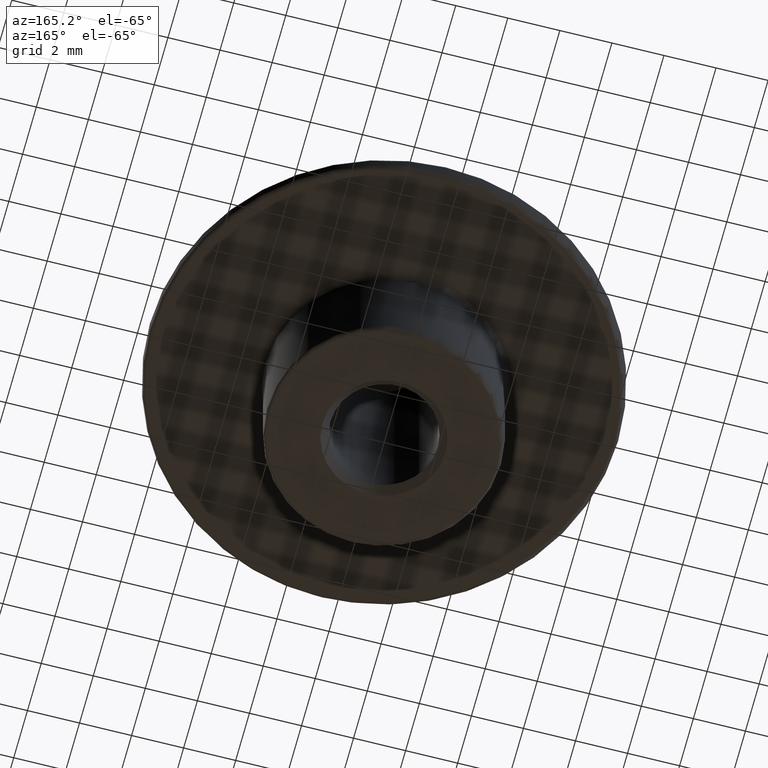
[diagram: clean part render]
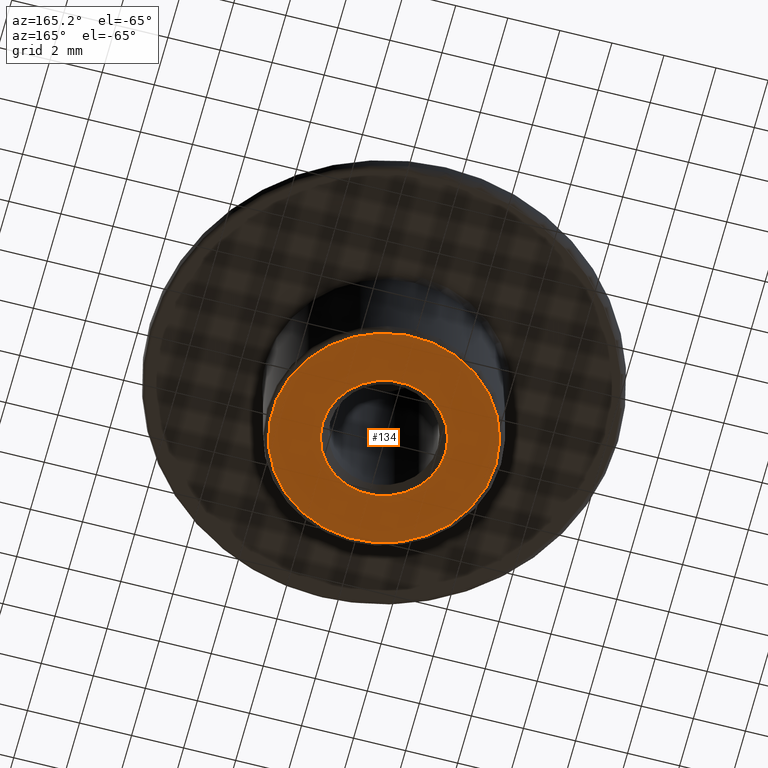
[diagram: same view with one face highlighted and labeled with its STEP entity id]
A machine part, auxiliary view. The second image highlights one B-rep face of the part: STEP entity #134.
In plain terms, the highlighted planar face has unit normal (0, 0, 1).
Its self-contained STEP definition (entity closure, byte-faithful):
#17=PLANE('',#156);
#30=FACE_BOUND('',#61,.T.);
#41=FACE_OUTER_BOUND('',#60,.T.);
#60=EDGE_LOOP('',(#115));
#61=EDGE_LOOP('',(#116));
#74=CIRCLE('',#155,4.3);
#75=CIRCLE('',#157,2.367);
#85=VERTEX_POINT('',#234);
#86=VERTEX_POINT('',#237);
#96=EDGE_CURVE('',#85,#85,#74,.T.);
#97=EDGE_CURVE('',#86,#86,#75,.T.);
#115=ORIENTED_EDGE('',*,*,#96,.F.);
#116=ORIENTED_EDGE('',*,*,#97,.F.);
#134=ADVANCED_FACE('',(#41,#30),#17,.F.);
#155=AXIS2_PLACEMENT_3D('',#235,#195,#196);
#156=AXIS2_PLACEMENT_3D('',#236,#197,#198);
#157=AXIS2_PLACEMENT_3D('',#238,#199,#200);
#195=DIRECTION('center_axis',(0.,0.,1.));
#196=DIRECTION('ref_axis',(1.,0.,0.));
#197=DIRECTION('center_axis',(0.,0.,1.));
#198=DIRECTION('ref_axis',(1.,0.,0.));
#199=DIRECTION('center_axis',(0.,0.,-1.));
#200=DIRECTION('ref_axis',(1.,0.,0.));
#234=CARTESIAN_POINT('',(-4.3,-5.26598123633362E-16,2.));
#235=CARTESIAN_POINT('Origin',(0.,0.,2.));
#236=CARTESIAN_POINT('Origin',(2.51521111380092E-16,1.02798428206033E-16,
2.));
#237=CARTESIAN_POINT('',(-2.367,2.89873897358179E-16,2.));
#238=CARTESIAN_POINT('Origin',(0.,0.,2.));